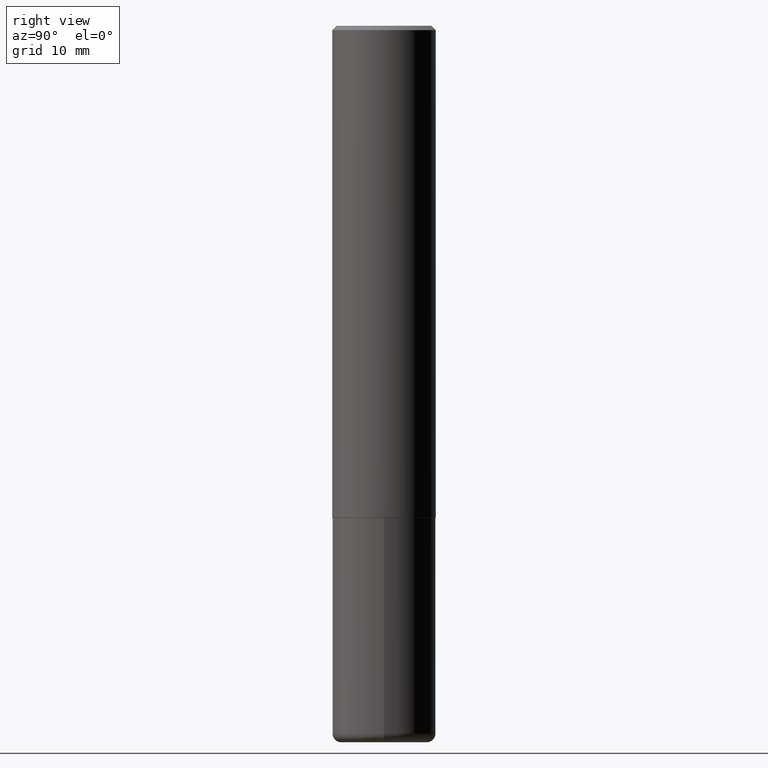
[diagram: clean part render]
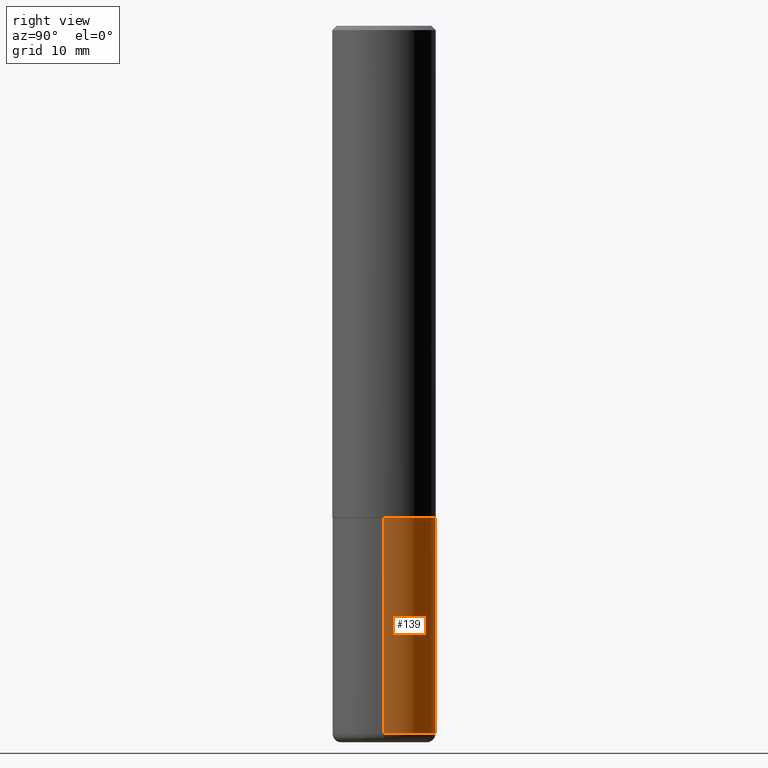
[diagram: same view with one face highlighted and labeled with its STEP entity id]
A machine part, right view. The second image highlights one B-rep face of the part: STEP entity #139.
In plain terms, the highlighted cylindrical surface (partial cylindrical patch) has radius 5.9995 mm, axis along (-0, 0, 1).
Its self-contained STEP definition (entity closure, byte-faithful):
#6 = DIRECTION ( 'NONE',  ( -2.445468806185136597E-29, 3.491481338843145583E-15, 1.000000000000000000 ) ) ;
#9 = AXIS2_PLACEMENT_3D ( 'NONE', #238, #6, #273 ) ;
#13 = ORIENTED_EDGE ( 'NONE', *, *, #261, .F. ) ;
#14 = CARTESIAN_POINT ( 'NONE',  ( 0.2361999999999999933, -9.484609056967400443E-15, -2.244100000000000428 ) ) ;
#39 = CARTESIAN_POINT ( 'NONE',  ( -0.2362000000000000210, -9.593247264321970832E-15, -3.228299999999999947 ) ) ;
#53 = LINE ( 'NONE', #314, #216 ) ;
#76 = FACE_OUTER_BOUND ( 'NONE', #146, .T. ) ;
#80 = AXIS2_PLACEMENT_3D ( 'NONE', #280, #182, #282 ) ;
#82 = DIRECTION ( 'NONE',  ( -2.445468806185136877E-29, 3.491481338843145188E-15, 1.000000000000000000 ) ) ;
#121 = CARTESIAN_POINT ( 'NONE',  ( 7.894706947007477118E-29, -1.127154920618732880E-14, -3.228299999999999947 ) ) ;
#139 = ADVANCED_FACE ( 'NONE', ( #76 ), #362, .T. ) ;
#146 = EDGE_LOOP ( 'NONE', ( #179, #298, #286, #13 ) ) ;
#147 = LINE ( 'NONE', #338, #351 ) ;
#178 = EDGE_CURVE ( 'NONE', #181, #405, #147, .T. ) ;
#179 = ORIENTED_EDGE ( 'NONE', *, *, #418, .T. ) ;
#181 = VERTEX_POINT ( 'NONE', #39 ) ;
#182 = DIRECTION ( 'NONE',  ( -2.445468806185136597E-29, 3.491481338843145583E-15, 1.000000000000000000 ) ) ;
#215 = CARTESIAN_POINT ( 'NONE',  ( -0.2361999999999999933, -7.875089297477259967E-15, -2.244100000000000428 ) ) ;
#216 = VECTOR ( 'NONE', #82, 39.37007874015748143 ) ;
#238 = CARTESIAN_POINT ( 'NONE',  ( 0.000000000000000000, 0.000000000000000000, 0.000000000000000000 ) ) ;
#250 = DIRECTION ( 'NONE',  ( -2.445468806185136597E-29, 3.491481338843145583E-15, 1.000000000000000000 ) ) ;
#261 = EDGE_CURVE ( 'NONE', #283, #325, #53, .T. ) ;
#273 = DIRECTION ( 'NONE',  ( 1.000000000000000000, -6.982962677686266711E-15, 4.876176775795936353E-29 ) ) ;
#280 = CARTESIAN_POINT ( 'NONE',  ( 5.487876547960065873E-29, -7.835233272497903917E-15, -2.244100000000000428 ) ) ;
#282 = DIRECTION ( 'NONE',  ( 1.000000000000000000, -6.982962677686269077E-15, 0.000000000000000000 ) ) ;
#283 = VERTEX_POINT ( 'NONE', #403 ) ;
#286 = ORIENTED_EDGE ( 'NONE', *, *, #344, .F. ) ;
#296 = AXIS2_PLACEMENT_3D ( 'NONE', #121, #250, #376 ) ;
#298 = ORIENTED_EDGE ( 'NONE', *, *, #178, .T. ) ;
#302 = DIRECTION ( 'NONE',  ( -2.445468806185136877E-29, 3.491481338843145188E-15, 1.000000000000000000 ) ) ;
#314 = CARTESIAN_POINT ( 'NONE',  ( 0.2361999999999999933, -1.649375784469496131E-15, 1.151752954443000088E-29 ) ) ;
#325 = VERTEX_POINT ( 'NONE', #14 ) ;
#333 = CIRCLE ( 'NONE', #296, 0.2361999999999999933 ) ;
#338 = CARTESIAN_POINT ( 'NONE',  ( -0.2361999999999999933, 1.678301941865356591E-15, -1.161852468318208757E-29 ) ) ;
#344 = EDGE_CURVE ( 'NONE', #325, #405, #386, .T. ) ;
#351 = VECTOR ( 'NONE', #302, 39.37007874015748143 ) ;
#362 = CYLINDRICAL_SURFACE ( 'NONE', #9, 0.2361999999999999933 ) ;
#376 = DIRECTION ( 'NONE',  ( 1.000000000000000000, -6.982962677686265133E-15, 0.000000000000000000 ) ) ;
#386 = CIRCLE ( 'NONE', #80, 0.2361999999999999933 ) ;
#403 = CARTESIAN_POINT ( 'NONE',  ( 0.2362000000000000210, -1.292092499065682375E-14, -3.228299999999999947 ) ) ;
#405 = VERTEX_POINT ( 'NONE', #215 ) ;
#418 = EDGE_CURVE ( 'NONE', #283, #181, #333, .T. ) ;